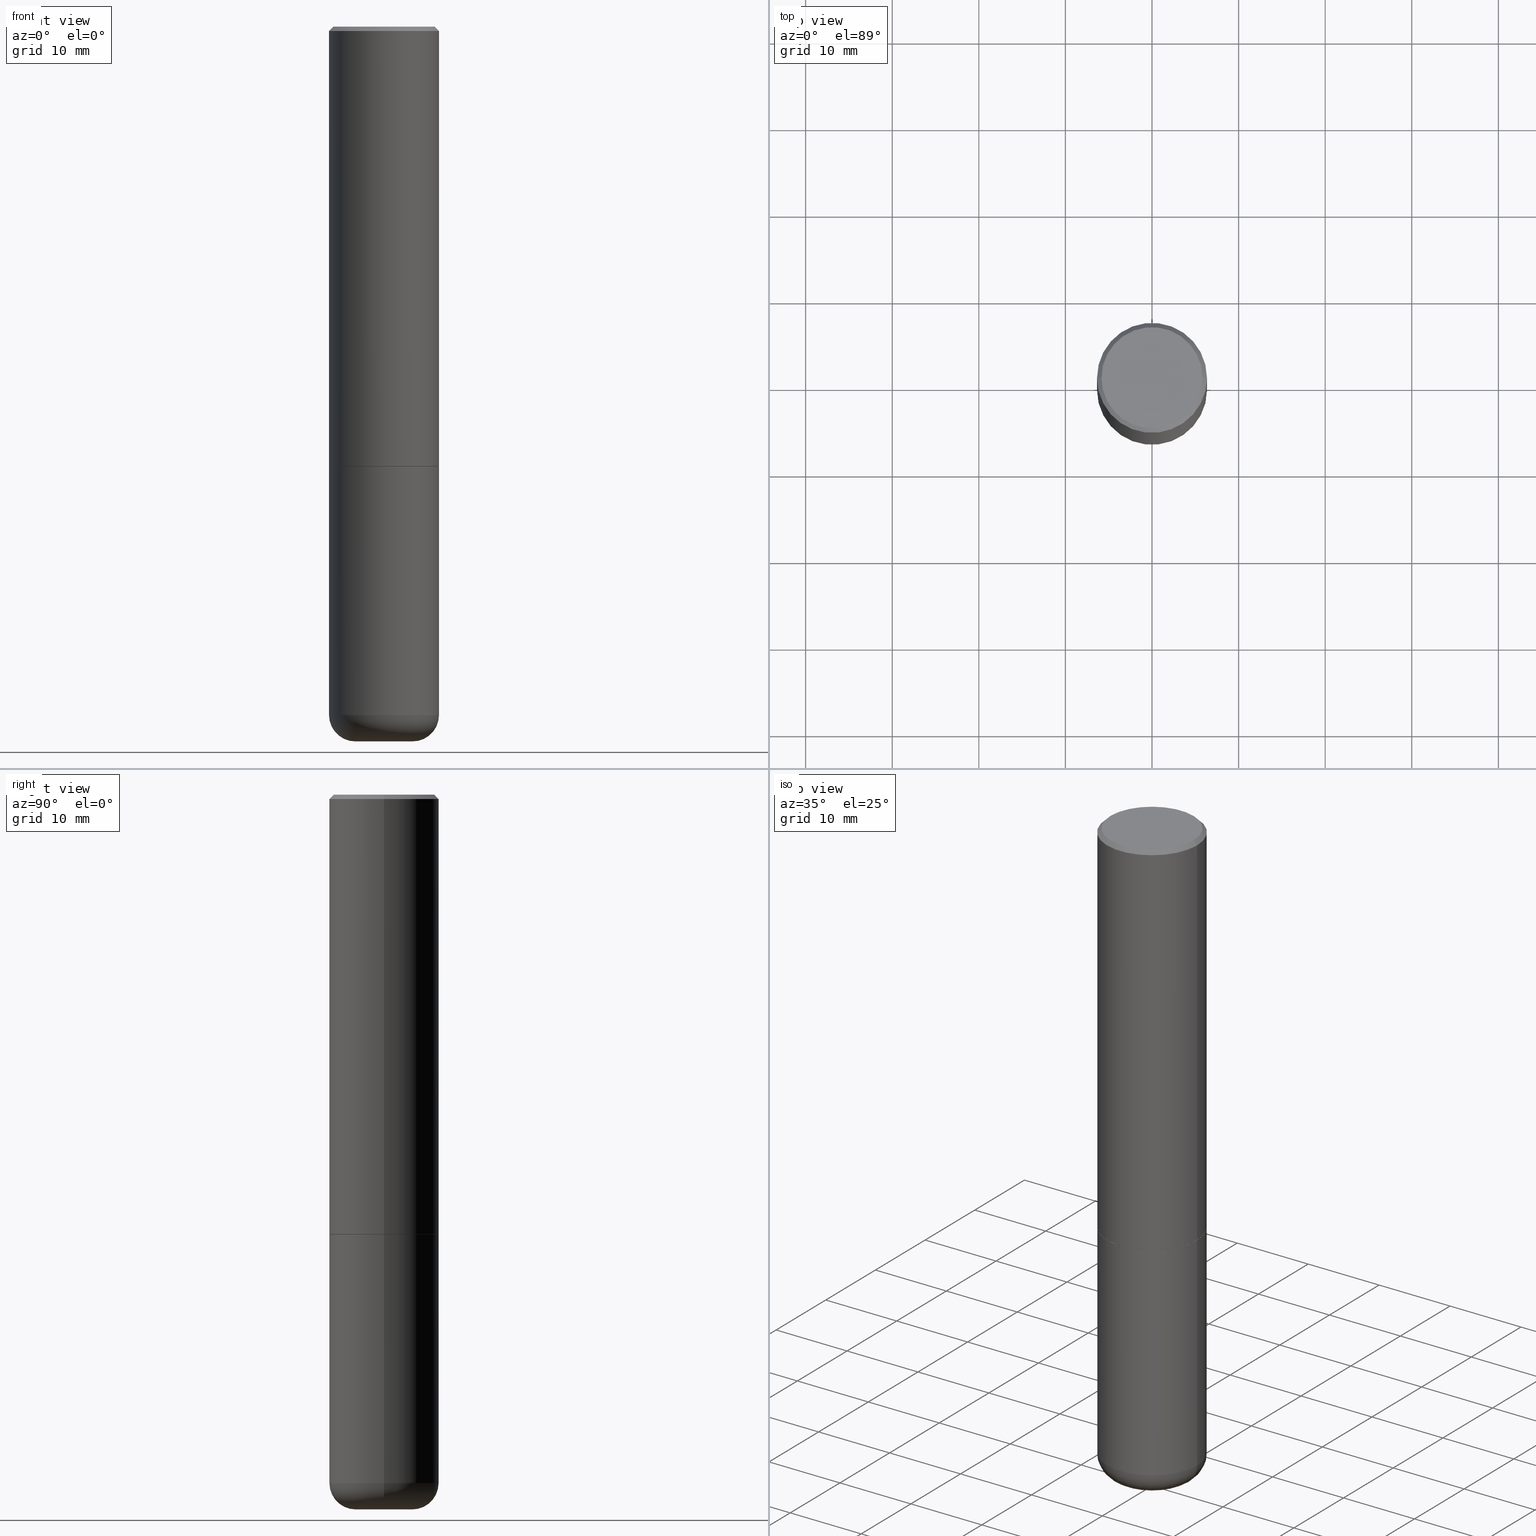
[diagram: canonical four-view strip — front | top / right | iso, engineering-drawing reading convention]
A machine part, canonical four-view strip (front | top / right | iso — engineering-drawing reading convention). The complete STEP part file that produces these views, byte-faithful:
ISO-10303-21;
HEADER;
FILE_DESCRIPTION (( 'STEP AP203' ),
    '1' );
FILE_NAME ('32766.STEP',
    '2022-11-02T20:10:44',
    ( '' ),
    ( '' ),
    'SwSTEP 2.0',
    'SolidWorks 2022',
    '' );
FILE_SCHEMA (( 'CONFIG_CONTROL_DESIGN' ));
ENDSEC;

DATA;
#1 = CARTESIAN_POINT ( 'NONE',  ( 7.947204554791619182E-29, -1.134650187679537143E-14, -3.249767298070359800 ) ) ;
#2 = CARTESIAN_POINT ( 'NONE',  ( -0.2499999999999994171, 1.675911042644699238E-15, -0.02000000000000011491 ) ) ;
#3 = VECTOR ( 'NONE', #159, 39.37007874015748854 ) ;
#4 = CARTESIAN_POINT ( 'NONE',  ( -0.2499999999999996114, -1.748293572161906447E-15, -1.998999999999999888 ) ) ;
#5 = CARTESIAN_POINT ( 'NONE',  ( 4.890937612370273194E-29, -6.982962677686291165E-15, -2.000000000000000000 ) ) ;
#6 = DIRECTION ( 'NONE',  ( 1.000000000000000000, -6.982962677686264344E-15, 0.000000000000000000 ) ) ;
#7 = ADVANCED_FACE ( 'NONE', ( #115 ), #190, .T. ) ;
#8 = CARTESIAN_POINT ( 'NONE',  ( -0.2499999999999995559, 1.776356839400247309E-15, -1.229733772563724203E-29 ) ) ;
#9 = FACE_OUTER_BOUND ( 'NONE', #211, .T. ) ;
#10 = CARTESIAN_POINT ( 'NONE',  ( 1.606081415867836334E-15, 0.2299999999999993161, -8.009064516888709120E-16 ) ) ;
#11 = AXIS2_PLACEMENT_3D ( 'NONE', #197, #83, #387 ) ;
#12 = CARTESIAN_POINT ( 'NONE',  ( 0.2499999999999994171, -1.784954126219742244E-15, -0.02000000000000011491 ) ) ;
#13 = AXIS2_PLACEMENT_3D ( 'NONE', #240, #318, #460 ) ;
#14 = VECTOR ( 'NONE', #194, 39.37007874015748143 ) ;
#15 = EDGE_CURVE ( 'NONE', #65, #456, #232, .T. ) ;
#16 = DIRECTION ( 'NONE',  ( 2.438088387897960049E-29, -3.491481338843145188E-15, -1.000000000000000000 ) ) ;
#17 = DIRECTION ( 'NONE',  ( 1.000000000000000000, -6.982962677686273810E-15, 0.000000000000000000 ) ) ;
#18 = CARTESIAN_POINT ( 'NONE',  ( -0.2499999999999996669, -7.179300771427075001E-15, -2.000000000000000000 ) ) ;
#19 = VECTOR ( 'NONE', #406, 39.37007874015748143 ) ;
#20 = CLOSED_SHELL ( 'NONE', ( #185, #425, #463, #359, #95, #90, #307, #44 ) ) ;
#21 = DIRECTION ( 'NONE',  ( -2.445468806185136597E-29, 3.491481338843145583E-15, 1.000000000000000000 ) ) ;
#22 = EDGE_CURVE ( 'NONE', #105, #264, #279, .T. ) ;
#23 = CARTESIAN_POINT ( 'NONE',  ( 0.2489999999999996660, -8.721720384430167884E-15, -2.000000000000000000 ) ) ;
#24 = LOCAL_TIME ( 16, 10, 44.00000000000000000, #101 ) ;
#25 = AXIS2_PLACEMENT_3D ( 'NONE', #428, #201, #347 ) ;
#26 = ORIENTED_EDGE ( 'NONE', *, *, #153, .T. ) ;
#27 = CARTESIAN_POINT ( 'NONE',  ( 0.000000000000000000, 0.000000000000000000, 0.000000000000000000 ) ) ;
#28 = PERSON ( 'UNSPECIFIED', 'UNSPECIFIED', 'UNSPECIFIED', ('UNSPECIFIED'), ('UNSPECIFIED'), ('UNSPECIFIED') ) ;
#29 = ORIENTED_EDGE ( 'NONE', *, *, #453, .T. ) ;
#30 = PERSON_AND_ORGANIZATION_ROLE ( 'creator' ) ;
#31 = DIMENSIONAL_EXPONENTS ( 1.000000000000000000, 0.000000000000000000, 0.000000000000000000, 0.000000000000000000, 0.000000000000000000, 0.000000000000000000, 0.000000000000000000 ) ;
#32 = ORIENTED_EDGE ( 'NONE', *, *, #128, .T. ) ;
#33 = PERSON_AND_ORGANIZATION ( #28, #48 ) ;
#34 = TOROIDAL_SURFACE ( 'NONE', #317, 0.1300000000000002265, 0.1199999999999995098 ) ;
#35 = ORIENTED_EDGE ( 'NONE', *, *, #313, .F. ) ;
#36 = AXIS2_PLACEMENT_3D ( 'NONE', #477, #94, #250 ) ;
#37 = EDGE_LOOP ( 'NONE', ( #233, #405, #413, #145 ) ) ;
#38 = CARTESIAN_POINT ( 'NONE',  ( 0.2499999999999994171, -1.784954126219742244E-15, -0.02000000000000011491 ) ) ;
#39 = ORIENTED_EDGE ( 'NONE', *, *, #410, .T. ) ;
#40 = CYLINDRICAL_SURFACE ( 'NONE', #416, 0.2499999999999995559 ) ;
#41 = FACE_OUTER_BOUND ( 'NONE', #141, .T. ) ;
#42 = AXIS2_PLACEMENT_3D ( 'NONE', #155, #312, #461 ) ;
#43 = CARTESIAN_POINT ( 'NONE',  ( 7.947773620101693940E-29, -1.134731435124022443E-14, -3.250000000000000000 ) ) ;
#44 = ADVANCED_FACE ( 'NONE', ( #200 ), #285, .F. ) ;
#45 = DIRECTION ( 'NONE',  ( -2.445468806185136597E-29, 3.491481338843145583E-15, 1.000000000000000000 ) ) ;
#46 = CARTESIAN_POINT ( 'NONE',  ( -0.1289528157401960140, -1.044684165174388083E-14, -3.250000000000000000 ) ) ;
#47 = CARTESIAN_POINT ( 'NONE',  ( 4.890937612370273194E-29, -6.982962677686291165E-15, -2.000000000000000000 ) ) ;
#48 = ORGANIZATION ( 'UNSPECIFIED', 'UNSPECIFIED', '' ) ;
#49 = LINE ( 'NONE', #254, #19 ) ;
#50 = APPROVAL_PERSON_ORGANIZATION ( #377, #198, #260 ) ;
#51 = CARTESIAN_POINT ( 'NONE',  ( 7.947204554791619182E-29, -1.134650187679537143E-14, -3.249767298070359800 ) ) ;
#52 = APPROVAL ( #411, 'UNSPECIFIED' ) ;
#53 = CARTESIAN_POINT ( 'NONE',  ( 7.947773620101693940E-29, -1.134731435124022443E-14, -3.250000000000000000 ) ) ;
#54 = CIRCLE ( 'NONE', #172, 0.2489999999999996660 ) ;
#55 = PLANE ( 'NONE',  #478 ) ;
#56 = AXIS2_PLACEMENT_3D ( 'NONE', #310, #431, #392 ) ;
#57 = FACE_OUTER_BOUND ( 'NONE', #235, .T. ) ;
#58 = EDGE_LOOP ( 'NONE', ( #415, #26, #249, #379 ) ) ;
#59 = DIRECTION ( 'NONE',  ( 2.445468806185136597E-29, -3.491481338843145583E-15, -1.000000000000000000 ) ) ;
#60 = CARTESIAN_POINT ( 'NONE',  ( 4.888492143564087591E-29, -6.979471196347447369E-15, -1.998999999999999888 ) ) ;
#61 = EDGE_CURVE ( 'NONE', #264, #484, #424, .T. ) ;
#62 = CONICAL_SURFACE ( 'NONE', #342, 0.1022878157401959642, 1.535889741755009696 ) ;
#63 = ORIENTED_EDGE ( 'NONE', *, *, #130, .F. ) ;
#64 = CARTESIAN_POINT ( 'NONE',  ( 0.2499999999999994449, -1.267409321338991461E-14, -3.130004569232299527 ) ) ;
#65 = VERTEX_POINT ( 'NONE', #237 ) ;
#66 = COORDINATED_UNIVERSAL_TIME_OFFSET ( 5, 0, .BEHIND. ) ;
#67 = EDGE_CURVE ( 'NONE', #330, #456, #464, .T. ) ;
#68 = ORIENTED_EDGE ( 'NONE', *, *, #153, .F. ) ;
#69 = LENGTH_MEASURE_WITH_UNIT ( LENGTH_MEASURE( 0.02539999999999999897 ), #290 );
#70 = CIRCLE ( 'NONE', #289, 0.1289528157401960140 ) ;
#71 = EDGE_LOOP ( 'NONE', ( #381, #29 ) ) ;
#72 = DIRECTION ( 'NONE',  ( 0.000000000000000000, 0.000000000000000000, 1.000000000000000000 ) ) ;
#73 = ORIENTED_EDGE ( 'NONE', *, *, #479, .T. ) ;
#74 = CC_DESIGN_PERSON_AND_ORGANIZATION_ASSIGNMENT ( #414, #221, ( #435 ) ) ;
#75 = APPROVAL_STATUS ( 'not_yet_approved' ) ;
#76 = ORIENTED_EDGE ( 'NONE', *, *, #281, .T. ) ;
#77 = COORDINATED_UNIVERSAL_TIME_OFFSET ( 5, 0, .BEHIND. ) ;
#78 = EDGE_CURVE ( 'NONE', #330, #457, #80, .T. ) ;
#79 = EDGE_LOOP ( 'NONE', ( #419, #147, #375, #226 ) ) ;
#80 = CIRCLE ( 'NONE', #56, 0.2499999999999994449 ) ;
#81 = CARTESIAN_POINT ( 'NONE',  ( 0.000000000000000000, 0.000000000000000000, 0.000000000000000000 ) ) ;
#82 = DIRECTION ( 'NONE',  ( 0.7071067811865471286, -7.319954787623254468E-15, -0.7071067811865479058 ) ) ;
#83 = DIRECTION ( 'NONE',  ( -2.445468806185136597E-29, 3.491481338843145583E-15, 1.000000000000000000 ) ) ;
#84 = CONICAL_SURFACE ( 'NONE', #143, 0.2499999999999994171, 0.7853981633974477239 ) ;
#85 = DIRECTION ( 'NONE',  ( 1.000000000000000000, -6.982962677686266711E-15, 0.000000000000000000 ) ) ;
#86 = CYLINDRICAL_SURFACE ( 'NONE', #136, 0.2499999999999995282 ) ;
#87 = CC_DESIGN_APPROVAL ( #52, ( #231 ) ) ;
#88 = APPROVAL_PERSON_ORGANIZATION ( #449, #272, #270 ) ;
#89 = DIRECTION ( 'NONE',  ( 0.9993908270190957621, -6.978169709227543066E-15, -0.03489949670250130226 ) ) ;
#90 = ADVANCED_FACE ( 'NONE', ( #434 ), #208, .T. ) ;
#91 = AXIS2_PLACEMENT_3D ( 'NONE', #280, #160, #438 ) ;
#92 = DIRECTION ( 'NONE',  ( -2.445468806185136597E-29, 3.491481338843145583E-15, 1.000000000000000000 ) ) ;
#93 = ORIENTED_EDGE ( 'NONE', *, *, #479, .F. ) ;
#94 = DIRECTION ( 'NONE',  ( -2.445468806185136597E-29, 3.491481338843145583E-15, 1.000000000000000000 ) ) ;
#95 = ADVANCED_FACE ( 'NONE', ( #354 ), #86, .T. ) ;
#96 = LINE ( 'NONE', #255, #466 ) ;
#97 = VERTEX_POINT ( 'NONE', #308 ) ;
#98 = FACE_OUTER_BOUND ( 'NONE', #244, .T. ) ;
#99 = LINE ( 'NONE', #370, #202 ) ;
#100 = ORIENTED_EDGE ( 'NONE', *, *, #313, .T. ) ;
#101 = COORDINATED_UNIVERSAL_TIME_OFFSET ( 5, 0, .BEHIND. ) ;
#102 = VERTEX_POINT ( 'NONE', #117 ) ;
#103 = UNCERTAINTY_MEASURE_WITH_UNIT (LENGTH_MEASURE( 1.000000000000000082E-05 ), #142, 'distance_accuracy_value', 'NONE');
#104 = CALENDAR_DATE ( 2022, 2, 11 ) ;
#105 = VERTEX_POINT ( 'NONE', #426 ) ;
#106 = CONICAL_SURFACE ( 'NONE', #297, 0.1289528157401960140, 1.562069680534929894 ) ;
#107 = ADVANCED_FACE ( 'NONE', ( #41 ), #106, .F. ) ;
#108 = VERTEX_POINT ( 'NONE', #2 ) ;
#109 = DATE_AND_TIME ( #488, #404 ) ;
#110 = ORIENTED_EDGE ( 'NONE', *, *, #447, .T. ) ;
#111 = EDGE_CURVE ( 'NONE', #457, #330, #422, .T. ) ;
#112 = APPROVAL_DATE_TIME ( #134, #52 ) ;
#113 = ORIENTED_EDGE ( 'NONE', *, *, #300, .F. ) ;
#114 = CIRCLE ( 'NONE', #316, 0.2499999999999996669 ) ;
#115 = FACE_OUTER_BOUND ( 'NONE', #58, .T. ) ;
#116 = DIRECTION ( 'NONE',  ( -2.445468806185136597E-29, 3.491481338843145583E-15, 1.000000000000000000 ) ) ;
#117 = CARTESIAN_POINT ( 'NONE',  ( -0.1289528157401960140, -9.791522595504129181E-15, -3.250000000000000000 ) ) ;
#118 = CARTESIAN_POINT ( 'NONE',  ( 0.2499999999999995559, -1.745740669421563522E-15, 1.219044193948981706E-29 ) ) ;
#119 = FACE_OUTER_BOUND ( 'NONE', #189, .T. ) ;
#120 = CARTESIAN_POINT ( 'NONE',  ( 7.654328537274535481E-29, -1.092835254396835267E-14, -3.130004569232299527 ) ) ;
#121 = CIRCLE ( 'NONE', #357, 0.1022878157401959642 ) ;
#122 = DIRECTION ( 'NONE',  ( 1.000000000000000000, -6.982962677686266711E-15, 4.876176775795935232E-29 ) ) ;
#123 = VERTEX_POINT ( 'NONE', #350 ) ;
#124 = DIRECTION ( 'NONE',  ( 2.445468806185136597E-29, -3.491481338843145583E-15, -1.000000000000000000 ) ) ;
#125 = DIRECTION ( 'NONE',  ( 1.000000000000000000, -6.982962677686264344E-15, 0.000000000000000000 ) ) ;
#126 = VECTOR ( 'NONE', #196, 39.37007874015748143 ) ;
#127 = FACE_OUTER_BOUND ( 'NONE', #71, .T. ) ;
#128 = EDGE_CURVE ( 'NONE', #105, #378, #309, .T. ) ;
#129 = DIRECTION ( 'NONE',  ( -1.000000000000000000, 6.982962677686266711E-15, 0.000000000000000000 ) ) ;
#130 = EDGE_CURVE ( 'NONE', #268, #108, #368, .T. ) ;
#131 = CARTESIAN_POINT ( 'NONE',  ( 0.2499999999999995282, -1.745740669421563325E-15, 1.219044193948981566E-29 ) ) ;
#132 = FACE_OUTER_BOUND ( 'NONE', #421, .T. ) ;
#133 = CC_DESIGN_PERSON_AND_ORGANIZATION_ASSIGNMENT ( #374, #420, ( #263 ) ) ;
#134 = DATE_AND_TIME ( #104, #24 ) ;
#135 = AXIS2_PLACEMENT_3D ( 'NONE', #151, #384, #278 ) ;
#136 = AXIS2_PLACEMENT_3D ( 'NONE', #81, #429, #397 ) ;
#137 = ORIENTED_EDGE ( 'NONE', *, *, #111, .T. ) ;
#138 = APPLICATION_CONTEXT ( 'configuration controlled 3d designs of mechanical parts and assemblies' ) ;
#139 = ORIENTED_EDGE ( 'NONE', *, *, #300, .T. ) ;
#140 = SECURITY_CLASSIFICATION_LEVEL ( 'unclassified' ) ;
#141 = EDGE_LOOP ( 'NONE', ( #346, #222, #100, #491 ) ) ;
#142 =( CONVERSION_BASED_UNIT ( 'INCH', #69 ) LENGTH_UNIT ( ) NAMED_UNIT ( #31 ) );
#143 = AXIS2_PLACEMENT_3D ( 'NONE', #471, #288, #441 ) ;
#144 = EDGE_CURVE ( 'NONE', #102, #330, #179, .T. ) ;
#145 = ORIENTED_EDGE ( 'NONE', *, *, #396, .F. ) ;
#146 = APPROVAL_STATUS ( 'not_yet_approved' ) ;
#147 = ORIENTED_EDGE ( 'NONE', *, *, #61, .T. ) ;
#148 = DIRECTION ( 'NONE',  ( 2.438088387897960049E-29, -3.491481338843145188E-15, -1.000000000000000000 ) ) ;
#149 = DIRECTION ( 'NONE',  ( -0.9999619230641714207, 6.952228252019186602E-15, -0.008726535498369011531 ) ) ;
#150 = CIRCLE ( 'NONE', #382, 0.1289528157401960140 ) ;
#151 = CARTESIAN_POINT ( 'NONE',  ( -1.043851414335219820E-46, 1.490343170380447200E-32, 4.268512490100411279E-18 ) ) ;
#152 = MANIFOLD_SOLID_BREP ( 'Body-Move/Copy2[2]', #20 ) ;
#153 = EDGE_CURVE ( 'NONE', #102, #123, #70, .T. ) ;
#154 = DIRECTION ( 'NONE',  ( -2.445468806185136597E-29, 3.491481338843145583E-15, 1.000000000000000000 ) ) ;
#155 = CARTESIAN_POINT ( 'NONE',  ( -1.043851414335219820E-46, 1.490343170380447200E-32, 4.268512490100411279E-18 ) ) ;
#156 = MANIFOLD_SOLID_BREP ( 'Body-Move/Copy2[1]', #343 ) ;
#157 = ADVANCED_BREP_SHAPE_REPRESENTATION ( '32766', ( #156, #152, #271 ), #412 ) ;
#158 = DIRECTION ( 'NONE',  ( -1.000000000000000000, 7.105427357601003436E-15, 0.000000000000000000 ) ) ;
#159 = DIRECTION ( 'NONE',  ( 0.7071067811865232589, -2.468850131082003836E-15, 0.7071067811865715536 ) ) ;
#160 = DIRECTION ( 'NONE',  ( -2.445468806185136597E-29, 3.491481338843145583E-15, 1.000000000000000000 ) ) ;
#161 = CIRCLE ( 'NONE', #230, 0.2499999999999996669 ) ;
#162 = ADVANCED_FACE ( 'NONE', ( #98 ), #430, .F. ) ;
#163 = DIRECTION ( 'NONE',  ( -2.445468806185136877E-29, 3.491481338843145188E-15, 1.000000000000000000 ) ) ;
#164 = CARTESIAN_POINT ( 'NONE',  ( 0.2489999999999996660, -8.721720384430167884E-15, -2.000000000000000000 ) ) ;
#165 = DIRECTION ( 'NONE',  ( -2.445468806185136597E-29, 3.491481338843145583E-15, 1.000000000000000000 ) ) ;
#166 = DIRECTION ( 'NONE',  ( -0.7071067811865471286, 2.468850131082252722E-15, -0.7071067811865479058 ) ) ;
#167 = CONICAL_SURFACE ( 'NONE', #470, 0.2499999999999994171, 0.7853981633974477239 ) ;
#168 = SECURITY_CLASSIFICATION ( '', '', #140 ) ;
#169 = CARTESIAN_POINT ( 'NONE',  ( 0.1300000000000002265, -1.183613769206756923E-14, -3.130004569232299527 ) ) ;
#170 = EDGE_LOOP ( 'NONE', ( #110, #303, #476, #451 ) ) ;
#171 = DIRECTION ( 'NONE',  ( 1.000000000000000000, -6.982962677686264344E-15, 0.000000000000000000 ) ) ;
#172 = AXIS2_PLACEMENT_3D ( 'NONE', #353, #351, #6 ) ;
#173 = DIRECTION ( 'NONE',  ( -2.445468806185136597E-29, 3.491481338843145583E-15, 1.000000000000000000 ) ) ;
#174 = VERTEX_POINT ( 'NONE', #443 ) ;
#175 = DIRECTION ( 'NONE',  ( 7.105427357601001859E-15, 1.000000000000000000, -3.491481338843145583E-15 ) ) ;
#176 = DIRECTION ( 'NONE',  ( -6.982962677686266711E-15, -1.000000000000000000, 3.491481338843145583E-15 ) ) ;
#177 = PRODUCT_RELATED_PRODUCT_CATEGORY ( 'detail', '', ( #263 ) ) ;
#178 = CALENDAR_DATE ( 2022, 2, 11 ) ;
#179 = CIRCLE ( 'NONE', #437, 0.1199999999999995098 ) ;
#180 = EDGE_LOOP ( 'NONE', ( #93, #335, #305 ) ) ;
#181 = PRODUCT_DEFINITION_SHAPE ( 'NONE', 'NONE',  #231 ) ;
#182 = COORDINATED_UNIVERSAL_TIME_OFFSET ( 5, 0, .BEHIND. ) ;
#183 = ORIENTED_EDGE ( 'NONE', *, *, #22, .F. ) ;
#184 =( NAMED_UNIT ( * ) SI_UNIT ( $, .STERADIAN. ) SOLID_ANGLE_UNIT ( ) );
#185 = ADVANCED_FACE ( 'NONE', ( #57 ), #445, .T. ) ;
#186 = VERTEX_POINT ( 'NONE', #469 ) ;
#187 = COORDINATED_UNIVERSAL_TIME_OFFSET ( 5, 0, .BEHIND. ) ;
#188 = CIRCLE ( 'NONE', #455, 0.1022878157401959642 ) ;
#189 = EDGE_LOOP ( 'NONE', ( #294, #252, #139, #298 ) ) ;
#190 = TOROIDAL_SURFACE ( 'NONE', #258, 0.1300000000000002265, 0.1199999999999995098 ) ;
#191 = CC_DESIGN_PERSON_AND_ORGANIZATION_ASSIGNMENT ( #380, #452, ( #168 ) ) ;
#192 = VERTEX_POINT ( 'NONE', #362 ) ;
#193 = PLANE ( 'NONE',  #25 ) ;
#194 = DIRECTION ( 'NONE',  ( -2.445468806185136877E-29, 3.491481338843145188E-15, 1.000000000000000000 ) ) ;
#195 = DESIGN_CONTEXT ( 'detailed design', #138, 'design' ) ;
#196 = DIRECTION ( 'NONE',  ( -2.445468806185136877E-29, 3.491481338843145188E-15, 1.000000000000000000 ) ) ;
#197 = CARTESIAN_POINT ( 'NONE',  ( 7.654328537274535481E-29, -1.092835254396835267E-14, -3.130004569232299527 ) ) ;
#198 = APPROVAL ( #75, 'UNSPECIFIED' ) ;
#199 = LINE ( 'NONE', #118, #126 ) ;
#200 = FACE_OUTER_BOUND ( 'NONE', #218, .T. ) ;
#201 = DIRECTION ( 'NONE',  ( -2.438088387897960049E-29, 3.491481338843145188E-15, 1.000000000000000000 ) ) ;
#202 = VECTOR ( 'NONE', #89, 39.37007874015748143 ) ;
#203 = DIRECTION ( 'NONE',  ( -2.445468806185136597E-29, 3.491481338843145583E-15, 1.000000000000000000 ) ) ;
#204 = DIRECTION ( 'NONE',  ( 1.000000000000000000, -6.982962677686267499E-15, 0.000000000000000000 ) ) ;
#205 = APPLICATION_CONTEXT ( 'configuration controlled 3d designs of mechanical parts and assemblies' ) ;
#206 = DIRECTION ( 'NONE',  ( -2.445468806185136597E-29, 3.491481338843145583E-15, 1.000000000000000000 ) ) ;
#207 = AXIS2_PLACEMENT_3D ( 'NONE', #393, #360, #171 ) ;
#208 = CONICAL_SURFACE ( 'NONE', #334, 0.2489999999999996660, 0.7853981633974141952 ) ;
#209 = CARTESIAN_POINT ( 'NONE',  ( 1.745740669421613023E-15, 0.2499999999999927003, -2.000000000000000888 ) ) ;
#210 = DIRECTION ( 'NONE',  ( 0.9999619230641714207, -6.890705306874825328E-15, -0.008726535498369011531 ) ) ;
#211 = EDGE_LOOP ( 'NONE', ( #383, #442 ) ) ;
#212 = CARTESIAN_POINT ( 'NONE',  ( 4.890937612370302060E-31, -6.982962677686331052E-17, -0.02000000000000011491 ) ) ;
#213 = VECTOR ( 'NONE', #328, 39.37007874015748143 ) ;
#214 = DIRECTION ( 'NONE',  ( 1.000000000000000000, -6.982962677686264344E-15, 0.000000000000000000 ) ) ;
#215 = ORIENTED_EDGE ( 'NONE', *, *, #229, .F. ) ;
#216 = FACE_OUTER_BOUND ( 'NONE', #259, .T. ) ;
#217 = EDGE_CURVE ( 'NONE', #417, #97, #49, .T. ) ;
#218 = EDGE_LOOP ( 'NONE', ( #345, #76 ) ) ;
#219 = LOCAL_TIME ( 16, 10, 44.00000000000000000, #66 ) ;
#220 = CC_DESIGN_SECURITY_CLASSIFICATION ( #168, ( #435 ) ) ;
#221 = PERSON_AND_ORGANIZATION_ROLE ( 'design_supplier' ) ;
#222 = ORIENTED_EDGE ( 'NONE', *, *, #269, .T. ) ;
#223 = VECTOR ( 'NONE', #163, 39.37007874015748143 ) ;
#224 = ORIENTED_EDGE ( 'NONE', *, *, #319, .T. ) ;
#225 = APPLICATION_PROTOCOL_DEFINITION ( 'international standard', 'config_control_design', 1994, #205 ) ;
#226 = ORIENTED_EDGE ( 'NONE', *, *, #291, .F. ) ;
#227 = ORIENTED_EDGE ( 'NONE', *, *, #332, .T. ) ;
#228 = CALENDAR_DATE ( 2022, 2, 11 ) ;
#229 = EDGE_CURVE ( 'NONE', #484, #268, #327, .T. ) ;
#230 = AXIS2_PLACEMENT_3D ( 'NONE', #245, #369, #323 ) ;
#231 = PRODUCT_DEFINITION ( 'UNKNOWN', '', #435, #195 ) ;
#232 = CIRCLE ( 'NONE', #13, 0.2499999999999996669 ) ;
#233 = ORIENTED_EDGE ( 'NONE', *, *, #281, .F. ) ;
#234 = DIRECTION ( 'NONE',  ( -2.445468806185136597E-29, 3.491481338843145583E-15, 1.000000000000000000 ) ) ;
#235 = EDGE_LOOP ( 'NONE', ( #224, #337, #340, #467 ) ) ;
#236 = DIRECTION ( 'NONE',  ( 2.445468806185136597E-29, -3.491481338843145583E-15, -1.000000000000000000 ) ) ;
#237 = CARTESIAN_POINT ( 'NONE',  ( 0.2499999999999996669, -8.728703347107855476E-15, -2.000000000000000000 ) ) ;
#238 = CARTESIAN_POINT ( 'NONE',  ( 4.890937612370302060E-31, -6.982962677686331052E-17, -0.02000000000000011491 ) ) ;
#239 = CIRCLE ( 'NONE', #304, 0.1199999999999995098 ) ;
#240 = CARTESIAN_POINT ( 'NONE',  ( 4.890937612370273194E-29, -6.982962677686291165E-15, -2.000000000000000000 ) ) ;
#241 = EDGE_CURVE ( 'NONE', #378, #484, #459, .T. ) ;
#242 = LINE ( 'NONE', #46, #266 ) ;
#243 = DIRECTION ( 'NONE',  ( 1.000000000000000000, -6.982962677686267499E-15, 0.000000000000000000 ) ) ;
#244 = EDGE_LOOP ( 'NONE', ( #227, #292, #68, #35 ) ) ;
#245 = CARTESIAN_POINT ( 'NONE',  ( 4.890937612370273194E-29, -6.982962677686291165E-15, -2.000000000000000000 ) ) ;
#246 = CONICAL_SURFACE ( 'NONE', #376, 0.1022878157401959642, 1.535889741755009696 ) ;
#247 = DIRECTION ( 'NONE',  ( 1.000000000000000000, -6.982962677686273810E-15, 0.000000000000000000 ) ) ;
#248 = DIRECTION ( 'NONE',  ( -1.000000000000000000, 6.982962677686265922E-15, -4.876176775795935793E-29 ) ) ;
#249 = ORIENTED_EDGE ( 'NONE', *, *, #402, .T. ) ;
#250 = DIRECTION ( 'NONE',  ( 1.000000000000000000, -6.982962677686266711E-15, 4.876176775795935232E-29 ) ) ;
#251 = AXIS2_PLACEMENT_3D ( 'NONE', #296, #444, #286 ) ;
#252 = ORIENTED_EDGE ( 'NONE', *, *, #78, .T. ) ;
#253 = CC_DESIGN_PERSON_AND_ORGANIZATION_ASSIGNMENT ( #336, #30, ( #231 ) ) ;
#254 = CARTESIAN_POINT ( 'NONE',  ( -0.1022878157401959642, -1.063222987709953400E-14, -3.249767298070359800 ) ) ;
#255 = CARTESIAN_POINT ( 'NONE',  ( 0.1289528157401960140, -1.223199488543284019E-14, -3.250000000000000000 ) ) ;
#256 = CARTESIAN_POINT ( 'NONE',  ( -0.2499999999999994171, 1.675911042644699238E-15, -0.02000000000000011491 ) ) ;
#257 = ADVANCED_FACE ( 'NONE', ( #395 ), #62, .F. ) ;
#258 = AXIS2_PLACEMENT_3D ( 'NONE', #120, #45, #348 ) ;
#259 = EDGE_LOOP ( 'NONE', ( #261, #400, #454, #301 ) ) ;
#260 = APPROVAL_ROLE ( '' ) ;
#261 = ORIENTED_EDGE ( 'NONE', *, *, #344, .F. ) ;
#262 = PERSON_AND_ORGANIZATION ( #28, #48 ) ;
#263 = PRODUCT ( '32766', '32766', '', ( #265 ) ) ;
#264 = VERTEX_POINT ( 'NONE', #4 ) ;
#265 = MECHANICAL_CONTEXT ( 'NONE', #205, 'mechanical' ) ;
#266 = VECTOR ( 'NONE', #149, 39.37007874015748854 ) ;
#267 = ORIENTED_EDGE ( 'NONE', *, *, #61, .F. ) ;
#268 = VERTEX_POINT ( 'NONE', #38 ) ;
#269 = EDGE_CURVE ( 'NONE', #174, #97, #121, .T. ) ;
#270 = APPROVAL_ROLE ( '' ) ;
#271 = AXIS2_PLACEMENT_3D ( 'NONE', #27, #72, #483 ) ;
#272 = APPROVAL ( #146, 'UNSPECIFIED' ) ;
#273 = EDGE_LOOP ( 'NONE', ( #474, #73, #365 ) ) ;
#274 = DIRECTION ( 'NONE',  ( -1.000000000000000000, 6.982962677686267499E-15, 0.000000000000000000 ) ) ;
#275 = AXIS2_PLACEMENT_3D ( 'NONE', #401, #295, #399 ) ;
#276 = CARTESIAN_POINT ( 'NONE',  ( 4.888492143564087591E-29, -6.979471196347447369E-15, -1.998999999999999888 ) ) ;
#277 = AXIS2_PLACEMENT_3D ( 'NONE', #276, #206, #462 ) ;
#278 = DIRECTION ( 'NONE',  ( 1.000000000000000000, -6.982962677686267499E-15, 4.876225828469323455E-29 ) ) ;
#279 = LINE ( 'NONE', #352, #358 ) ;
#280 = CARTESIAN_POINT ( 'NONE',  ( 4.890937612370302060E-31, -6.982962677686331052E-17, -0.02000000000000011491 ) ) ;
#281 = EDGE_CURVE ( 'NONE', #192, #186, #481, .T. ) ;
#282 = DATE_AND_TIME ( #228, #364 ) ;
#283 = CARTESIAN_POINT ( 'NONE',  ( 0.000000000000000000, 0.000000000000000000, 0.000000000000000000 ) ) ;
#284 = DIRECTION ( 'NONE',  ( -0.7071067811865232589, 7.493145998870265808E-15, 0.7071067811865715536 ) ) ;
#285 = PLANE ( 'NONE',  #482 ) ;
#286 = DIRECTION ( 'NONE',  ( 1.000000000000000000, -6.982962677686266711E-15, 4.876176775795935232E-29 ) ) ;
#287 = CC_DESIGN_DATE_AND_TIME_ASSIGNMENT ( #333, #341, ( #168 ) ) ;
#288 = DIRECTION ( 'NONE',  ( 2.445468806185136597E-29, -3.491481338843145583E-15, -1.000000000000000000 ) ) ;
#289 = AXIS2_PLACEMENT_3D ( 'NONE', #43, #165, #247 ) ;
#290 =( LENGTH_UNIT ( ) NAMED_UNIT ( * ) SI_UNIT ( $, .METRE. ) );
#291 = EDGE_CURVE ( 'NONE', #108, #268, #490, .T. ) ;
#292 = ORIENTED_EDGE ( 'NONE', *, *, #367, .T. ) ;
#293 = LINE ( 'NONE', #256, #331 ) ;
#294 = ORIENTED_EDGE ( 'NONE', *, *, #67, .F. ) ;
#295 = DIRECTION ( 'NONE',  ( 2.445468806185136597E-29, -3.491481338843145583E-15, -1.000000000000000000 ) ) ;
#296 = CARTESIAN_POINT ( 'NONE',  ( 0.000000000000000000, 0.000000000000000000, 0.000000000000000000 ) ) ;
#297 = AXIS2_PLACEMENT_3D ( 'NONE', #53, #427, #492 ) ;
#298 = ORIENTED_EDGE ( 'NONE', *, *, #453, .F. ) ;
#299 = APPROVAL_DATE_TIME ( #109, #198 ) ;
#300 = EDGE_CURVE ( 'NONE', #457, #65, #199, .T. ) ;
#301 = ORIENTED_EDGE ( 'NONE', *, *, #291, .T. ) ;
#302 = DATE_TIME_ROLE ( 'creation_date' ) ;
#303 = ORIENTED_EDGE ( 'NONE', *, *, #144, .T. ) ;
#304 = AXIS2_PLACEMENT_3D ( 'NONE', #169, #176, #125 ) ;
#305 = ORIENTED_EDGE ( 'NONE', *, *, #269, .F. ) ;
#306 = ORIENTED_EDGE ( 'NONE', *, *, #67, .T. ) ;
#307 = ADVANCED_FACE ( 'NONE', ( #9 ), #193, .F. ) ;
#308 = CARTESIAN_POINT ( 'NONE',  ( -0.1022878157401959642, -1.063222987709953400E-14, -3.249767298070359800 ) ) ;
#309 = CIRCLE ( 'NONE', #389, 0.2489999999999996660 ) ;
#310 = CARTESIAN_POINT ( 'NONE',  ( 7.654328537274535481E-29, -1.092835254396835267E-14, -3.130004569232299527 ) ) ;
#311 = APPROVAL_DATE_TIME ( #282, #272 ) ;
#312 = DIRECTION ( 'NONE',  ( -2.445468806185136597E-29, 3.491481338843145583E-15, 1.000000000000000000 ) ) ;
#313 = EDGE_CURVE ( 'NONE', #97, #102, #242, .T. ) ;
#314 = DIRECTION ( 'NONE',  ( 1.000000000000000000, -6.982962677686264344E-15, 0.000000000000000000 ) ) ;
#315 = DIRECTION ( 'NONE',  ( -2.445468806185136597E-29, 3.491481338843145583E-15, 1.000000000000000000 ) ) ;
#316 = AXIS2_PLACEMENT_3D ( 'NONE', #60, #173, #214 ) ;
#317 = AXIS2_PLACEMENT_3D ( 'NONE', #475, #21, #409 ) ;
#318 = DIRECTION ( 'NONE',  ( -2.445468806185136597E-29, 3.491481338843145583E-15, 1.000000000000000000 ) ) ;
#319 = EDGE_CURVE ( 'NONE', #378, #105, #54, .T. ) ;
#320 = EDGE_CURVE ( 'NONE', #186, #192, #408, .T. ) ;
#321 = LINE ( 'NONE', #468, #213 ) ;
#322 = CARTESIAN_POINT ( 'NONE',  ( 7.947773620101693940E-29, -1.134731435124022443E-14, -3.250000000000000000 ) ) ;
#323 = DIRECTION ( 'NONE',  ( 1.000000000000000000, -6.982962677686268288E-15, 0.000000000000000000 ) ) ;
#324 = FACE_OUTER_BOUND ( 'NONE', #37, .T. ) ;
#325 = ADVANCED_FACE ( 'NONE', ( #119 ), #40, .T. ) ;
#326 = ORIENTED_EDGE ( 'NONE', *, *, #241, .T. ) ;
#327 = LINE ( 'NONE', #131, #223 ) ;
#328 = DIRECTION ( 'NONE',  ( -2.445468806185136877E-29, 3.491481338843145188E-15, 1.000000000000000000 ) ) ;
#329 = APPROVAL_ROLE ( '' ) ;
#330 = VERTEX_POINT ( 'NONE', #433 ) ;
#331 = VECTOR ( 'NONE', #166, 39.37007874015748143 ) ;
#332 = EDGE_CURVE ( 'NONE', #97, #174, #188, .T. ) ;
#333 = DATE_AND_TIME ( #178, #450 ) ;
#334 = AXIS2_PLACEMENT_3D ( 'NONE', #47, #203, #385 ) ;
#335 = ORIENTED_EDGE ( 'NONE', *, *, #217, .T. ) ;
#336 = PERSON_AND_ORGANIZATION ( #28, #48 ) ;
#337 = ORIENTED_EDGE ( 'NONE', *, *, #22, .T. ) ;
#338 = CC_DESIGN_APPROVAL ( #198, ( #435 ) ) ;
#339 = DATE_AND_TIME ( #480, #219 ) ;
#340 = ORIENTED_EDGE ( 'NONE', *, *, #432, .F. ) ;
#341 = DATE_TIME_ROLE ( 'classification_date' ) ;
#342 = AXIS2_PLACEMENT_3D ( 'NONE', #423, #236, #274 ) ;
#343 = CLOSED_SHELL ( 'NONE', ( #162, #386, #465, #257, #458, #486, #325, #7, #107 ) ) ;
#344 = EDGE_CURVE ( 'NONE', #192, #268, #356, .T. ) ;
#345 = ORIENTED_EDGE ( 'NONE', *, *, #320, .T. ) ;
#346 = ORIENTED_EDGE ( 'NONE', *, *, #367, .F. ) ;
#347 = DIRECTION ( 'NONE',  ( 1.000000000000000000, -6.982962677686265922E-15, 4.876176775795935793E-29 ) ) ;
#348 = DIRECTION ( 'NONE',  ( 1.000000000000000000, -6.982962677686270655E-15, 4.883557194083114583E-29 ) ) ;
#349 = AXIS2_PLACEMENT_3D ( 'NONE', #238, #388, #85 ) ;
#350 = CARTESIAN_POINT ( 'NONE',  ( 0.1289528157401960140, -1.224778705073656802E-14, -3.250000000000000000 ) ) ;
#351 = DIRECTION ( 'NONE',  ( -2.445468806185136597E-29, 3.491481338843145583E-15, 1.000000000000000000 ) ) ;
#352 = CARTESIAN_POINT ( 'NONE',  ( -0.2489999999999996660, -5.213711265643644864E-15, -2.000000000000000000 ) ) ;
#353 = CARTESIAN_POINT ( 'NONE',  ( 4.890937612370273194E-29, -6.982962677686291165E-15, -2.000000000000000000 ) ) ;
#354 = FACE_OUTER_BOUND ( 'NONE', #79, .T. ) ;
#355 = CC_DESIGN_DATE_AND_TIME_ASSIGNMENT ( #339, #302, ( #231 ) ) ;
#356 = LINE ( 'NONE', #12, #473 ) ;
#357 = AXIS2_PLACEMENT_3D ( 'NONE', #1, #234, #243 ) ;
#358 = VECTOR ( 'NONE', #284, 39.37007874015748854 ) ;
#359 = ADVANCED_FACE ( 'NONE', ( #216 ), #84, .T. ) ;
#360 = DIRECTION ( 'NONE',  ( -2.445468806185136597E-29, 3.491481338843145583E-15, 1.000000000000000000 ) ) ;
#361 = DIRECTION ( 'NONE',  ( -1.000000000000000000, 6.982962677686267499E-15, 0.000000000000000000 ) ) ;
#362 = CARTESIAN_POINT ( 'NONE',  ( 0.2299999999999993161, -1.681434332853594870E-15, 4.268512490111905999E-18 ) ) ;
#363 = FACE_OUTER_BOUND ( 'NONE', #489, .T. ) ;
#364 = LOCAL_TIME ( 16, 10, 44.00000000000000000, #77 ) ;
#365 = ORIENTED_EDGE ( 'NONE', *, *, #332, .F. ) ;
#366 = FACE_OUTER_BOUND ( 'NONE', #170, .T. ) ;
#367 = EDGE_CURVE ( 'NONE', #174, #123, #96, .T. ) ;
#368 = CIRCLE ( 'NONE', #91, 0.2499999999999994171 ) ;
#369 = DIRECTION ( 'NONE',  ( -2.445468806185136597E-29, 3.491481338843145583E-15, 1.000000000000000000 ) ) ;
#370 = CARTESIAN_POINT ( 'NONE',  ( 0.1022878157401959642, -1.204824723187740829E-14, -3.249767298070359800 ) ) ;
#371 = CC_DESIGN_PERSON_AND_ORGANIZATION_ASSIGNMENT ( #262, #485, ( #435 ) ) ;
#372 = CC_DESIGN_APPROVAL ( #272, ( #168 ) ) ;
#373 = ORIENTED_EDGE ( 'NONE', *, *, #15, .F. ) ;
#374 = PERSON_AND_ORGANIZATION ( #28, #48 ) ;
#375 = ORIENTED_EDGE ( 'NONE', *, *, #229, .T. ) ;
#376 = AXIS2_PLACEMENT_3D ( 'NONE', #439, #59, #361 ) ;
#377 = PERSON_AND_ORGANIZATION ( #28, #48 ) ;
#378 = VERTEX_POINT ( 'NONE', #23 ) ;
#379 = ORIENTED_EDGE ( 'NONE', *, *, #78, .F. ) ;
#380 = PERSON_AND_ORGANIZATION ( #28, #48 ) ;
#381 = ORIENTED_EDGE ( 'NONE', *, *, #15, .T. ) ;
#382 = AXIS2_PLACEMENT_3D ( 'NONE', #322, #92, #17 ) ;
#383 = ORIENTED_EDGE ( 'NONE', *, *, #319, .F. ) ;
#384 = DIRECTION ( 'NONE',  ( -2.445468806185136597E-29, 3.491481338843145583E-15, 1.000000000000000000 ) ) ;
#385 = DIRECTION ( 'NONE',  ( 1.000000000000000000, -6.982962677686264344E-15, 0.000000000000000000 ) ) ;
#386 = ADVANCED_FACE ( 'NONE', ( #366 ), #34, .T. ) ;
#387 = DIRECTION ( 'NONE',  ( 1.000000000000000000, -6.982962677686263555E-15, 0.000000000000000000 ) ) ;
#388 = DIRECTION ( 'NONE',  ( -2.445468806185136597E-29, 3.491481338843145583E-15, 1.000000000000000000 ) ) ;
#389 = AXIS2_PLACEMENT_3D ( 'NONE', #5, #154, #314 ) ;
#390 = DIRECTION ( 'NONE',  ( -1.000000000000000000, 6.982962677686265922E-15, -4.876176775795935793E-29 ) ) ;
#391 = SHAPE_DEFINITION_REPRESENTATION ( #181, #157 ) ;
#392 = DIRECTION ( 'NONE',  ( 1.000000000000000000, -6.982962677686263555E-15, 0.000000000000000000 ) ) ;
#393 = CARTESIAN_POINT ( 'NONE',  ( 4.890937612370273194E-29, -6.982962677686291165E-15, -2.000000000000000000 ) ) ;
#394 = APPROVAL_PERSON_ORGANIZATION ( #33, #52, #329 ) ;
#395 = FACE_OUTER_BOUND ( 'NONE', #273, .T. ) ;
#396 = EDGE_CURVE ( 'NONE', #186, #108, #293, .T. ) ;
#397 = DIRECTION ( 'NONE',  ( 1.000000000000000000, -6.982962677686266711E-15, 4.876176775795935232E-29 ) ) ;
#398 = CYLINDRICAL_SURFACE ( 'NONE', #251, 0.2499999999999995559 ) ;
#399 = DIRECTION ( 'NONE',  ( -1.000000000000000000, 6.982962677686273810E-15, 0.000000000000000000 ) ) ;
#400 = ORIENTED_EDGE ( 'NONE', *, *, #320, .F. ) ;
#401 = CARTESIAN_POINT ( 'NONE',  ( 7.947773620101693940E-29, -1.134731435124022443E-14, -3.250000000000000000 ) ) ;
#402 = EDGE_CURVE ( 'NONE', #123, #457, #239, .T. ) ;
#403 = FACE_OUTER_BOUND ( 'NONE', #180, .T. ) ;
#404 = LOCAL_TIME ( 16, 10, 44.00000000000000000, #182 ) ;
#405 = ORIENTED_EDGE ( 'NONE', *, *, #344, .T. ) ;
#406 = DIRECTION ( 'NONE',  ( -0.9993908270190957621, 6.856857904024554893E-15, -0.03489949670250130226 ) ) ;
#407 = CYLINDRICAL_SURFACE ( 'NONE', #36, 0.2499999999999995282 ) ;
#408 = CIRCLE ( 'NONE', #42, 0.2299999999999993161 ) ;
#409 = DIRECTION ( 'NONE',  ( 1.000000000000000000, -6.982962677686270655E-15, 4.883557194083114583E-29 ) ) ;
#410 = EDGE_CURVE ( 'NONE', #264, #108, #321, .T. ) ;
#411 = APPROVAL_STATUS ( 'not_yet_approved' ) ;
#412 =( GEOMETRIC_REPRESENTATION_CONTEXT ( 3 ) GLOBAL_UNCERTAINTY_ASSIGNED_CONTEXT ( ( #103 ) ) GLOBAL_UNIT_ASSIGNED_CONTEXT ( ( #142, #418, #184 ) ) REPRESENTATION_CONTEXT ( 'NONE', 'WORKASPACE' ) );
#413 = ORIENTED_EDGE ( 'NONE', *, *, #130, .T. ) ;
#414 = PERSON_AND_ORGANIZATION ( #28, #48 ) ;
#415 = ORIENTED_EDGE ( 'NONE', *, *, #144, .F. ) ;
#416 = AXIS2_PLACEMENT_3D ( 'NONE', #283, #315, #122 ) ;
#417 = VERTEX_POINT ( 'NONE', #436 ) ;
#418 =( NAMED_UNIT ( * ) PLANE_ANGLE_UNIT ( ) SI_UNIT ( $, .RADIAN. ) );
#419 = ORIENTED_EDGE ( 'NONE', *, *, #410, .F. ) ;
#420 = PERSON_AND_ORGANIZATION_ROLE ( 'design_owner' ) ;
#421 = EDGE_LOOP ( 'NONE', ( #137, #306, #373, #113 ) ) ;
#422 = CIRCLE ( 'NONE', #11, 0.2499999999999994449 ) ;
#423 = CARTESIAN_POINT ( 'NONE',  ( 7.947204554791619182E-29, -1.134650187679537143E-14, -3.249767298070359800 ) ) ;
#424 = CIRCLE ( 'NONE', #277, 0.2499999999999996669 ) ;
#425 = ADVANCED_FACE ( 'NONE', ( #363 ), #407, .T. ) ;
#426 = CARTESIAN_POINT ( 'NONE',  ( -0.2489999999999996660, -5.208412811295422462E-15, -2.000000000000000000 ) ) ;
#427 = DIRECTION ( 'NONE',  ( 2.445468806185136597E-29, -3.491481338843145583E-15, -1.000000000000000000 ) ) ;
#428 = CARTESIAN_POINT ( 'NONE',  ( 4.890937612370273194E-29, -6.982962677686291165E-15, -2.000000000000000000 ) ) ;
#429 = DIRECTION ( 'NONE',  ( -2.445468806185136597E-29, 3.491481338843145583E-15, 1.000000000000000000 ) ) ;
#430 = CONICAL_SURFACE ( 'NONE', #275, 0.1289528157401960140, 1.562069680534929894 ) ;
#431 = DIRECTION ( 'NONE',  ( -2.445468806185136597E-29, 3.491481338843145583E-15, 1.000000000000000000 ) ) ;
#432 = EDGE_CURVE ( 'NONE', #484, #264, #114, .T. ) ;
#433 = CARTESIAN_POINT ( 'NONE',  ( -0.2499999999999994449, -7.179300771427075001E-15, -3.130004569232299527 ) ) ;
#434 = FACE_OUTER_BOUND ( 'NONE', #487, .T. ) ;
#435 = PRODUCT_DEFINITION_FORMATION_WITH_SPECIFIED_SOURCE ( 'ANY', '', #263, .NOT_KNOWN. ) ;
#436 = CARTESIAN_POINT ( 'NONE',  ( 7.938469415450093491E-29, -1.133403041286747707E-14, -3.246195328835081995 ) ) ;
#437 = AXIS2_PLACEMENT_3D ( 'NONE', #440, #175, #158 ) ;
#438 = DIRECTION ( 'NONE',  ( 1.000000000000000000, -6.982962677686266711E-15, 0.000000000000000000 ) ) ;
#439 = CARTESIAN_POINT ( 'NONE',  ( 7.947204554791619182E-29, -1.134650187679537143E-14, -3.249767298070359800 ) ) ;
#440 = CARTESIAN_POINT ( 'NONE',  ( -0.1300000000000002265, -1.000464698748022161E-14, -3.130004569232299527 ) ) ;
#441 = DIRECTION ( 'NONE',  ( -1.000000000000000000, 6.982962677686266711E-15, 0.000000000000000000 ) ) ;
#442 = ORIENTED_EDGE ( 'NONE', *, *, #128, .F. ) ;
#443 = CARTESIAN_POINT ( 'NONE',  ( 0.1022878157401959642, -1.204824723187740829E-14, -3.249767298070359800 ) ) ;
#444 = DIRECTION ( 'NONE',  ( -2.445468806185136597E-29, 3.491481338843145583E-15, 1.000000000000000000 ) ) ;
#445 = CONICAL_SURFACE ( 'NONE', #207, 0.2489999999999996660, 0.7853981633974141952 ) ;
#446 = APPLICATION_PROTOCOL_DEFINITION ( 'international standard', 'config_control_design', 1994, #138 ) ;
#447 = EDGE_CURVE ( 'NONE', #123, #102, #150, .T. ) ;
#448 = ORIENTED_EDGE ( 'NONE', *, *, #432, .T. ) ;
#449 = PERSON_AND_ORGANIZATION ( #28, #48 ) ;
#450 = LOCAL_TIME ( 16, 10, 44.00000000000000000, #187 ) ;
#451 = ORIENTED_EDGE ( 'NONE', *, *, #402, .F. ) ;
#452 = PERSON_AND_ORGANIZATION_ROLE ( 'classification_officer' ) ;
#453 = EDGE_CURVE ( 'NONE', #456, #65, #161, .T. ) ;
#454 = ORIENTED_EDGE ( 'NONE', *, *, #396, .T. ) ;
#455 = AXIS2_PLACEMENT_3D ( 'NONE', #51, #116, #204 ) ;
#456 = VERTEX_POINT ( 'NONE', #18 ) ;
#457 = VERTEX_POINT ( 'NONE', #64 ) ;
#458 = ADVANCED_FACE ( 'NONE', ( #403 ), #246, .F. ) ;
#459 = LINE ( 'NONE', #164, #3 ) ;
#460 = DIRECTION ( 'NONE',  ( 1.000000000000000000, -6.982962677686268288E-15, 0.000000000000000000 ) ) ;
#461 = DIRECTION ( 'NONE',  ( 1.000000000000000000, -6.982962677686267499E-15, 4.876225828469323455E-29 ) ) ;
#462 = DIRECTION ( 'NONE',  ( 1.000000000000000000, -6.982962677686264344E-15, 0.000000000000000000 ) ) ;
#463 = ADVANCED_FACE ( 'NONE', ( #324 ), #167, .T. ) ;
#464 = LINE ( 'NONE', #8, #14 ) ;
#465 = ADVANCED_FACE ( 'NONE', ( #132 ), #398, .T. ) ;
#466 = VECTOR ( 'NONE', #210, 39.37007874015748854 ) ;
#467 = ORIENTED_EDGE ( 'NONE', *, *, #241, .F. ) ;
#468 = CARTESIAN_POINT ( 'NONE',  ( -0.2499999999999995282, 1.776356839400247112E-15, -1.229733772563724063E-29 ) ) ;
#469 = CARTESIAN_POINT ( 'NONE',  ( -0.2299999999999993161, 1.640996229256267786E-15, 4.268512490089056766E-18 ) ) ;
#470 = AXIS2_PLACEMENT_3D ( 'NONE', #212, #124, #129 ) ;
#471 = CARTESIAN_POINT ( 'NONE',  ( 4.890937612370302060E-31, -6.982962677686331052E-17, -0.02000000000000011491 ) ) ;
#472 = CARTESIAN_POINT ( 'NONE',  ( 0.2499999999999996669, -8.725211865769010891E-15, -1.998999999999999888 ) ) ;
#473 = VECTOR ( 'NONE', #82, 39.37007874015748143 ) ;
#474 = ORIENTED_EDGE ( 'NONE', *, *, #217, .F. ) ;
#475 = CARTESIAN_POINT ( 'NONE',  ( 7.654328537274535481E-29, -1.092835254396835267E-14, -3.130004569232299527 ) ) ;
#476 = ORIENTED_EDGE ( 'NONE', *, *, #111, .F. ) ;
#477 = CARTESIAN_POINT ( 'NONE',  ( 0.000000000000000000, 0.000000000000000000, 0.000000000000000000 ) ) ;
#478 = AXIS2_PLACEMENT_3D ( 'NONE', #209, #16, #248 ) ;
#479 = EDGE_CURVE ( 'NONE', #417, #174, #99, .T. ) ;
#480 = CALENDAR_DATE ( 2022, 2, 11 ) ;
#481 = CIRCLE ( 'NONE', #135, 0.2299999999999993161 ) ;
#482 = AXIS2_PLACEMENT_3D ( 'NONE', #10, #148, #390 ) ;
#483 = DIRECTION ( 'NONE',  ( 1.000000000000000000, 0.000000000000000000, 0.000000000000000000 ) ) ;
#484 = VERTEX_POINT ( 'NONE', #472 ) ;
#485 = PERSON_AND_ORGANIZATION_ROLE ( 'creator' ) ;
#486 = ADVANCED_FACE ( 'NONE', ( #127 ), #55, .F. ) ;
#487 = EDGE_LOOP ( 'NONE', ( #183, #32, #326, #267 ) ) ;
#488 = CALENDAR_DATE ( 2022, 2, 11 ) ;
#489 = EDGE_LOOP ( 'NONE', ( #448, #39, #63, #215 ) ) ;
#490 = CIRCLE ( 'NONE', #349, 0.2499999999999994171 ) ;
#491 = ORIENTED_EDGE ( 'NONE', *, *, #447, .F. ) ;
#492 = DIRECTION ( 'NONE',  ( -1.000000000000000000, 6.982962677686273810E-15, 0.000000000000000000 ) ) ;
ENDSEC;
END-ISO-10303-21;
